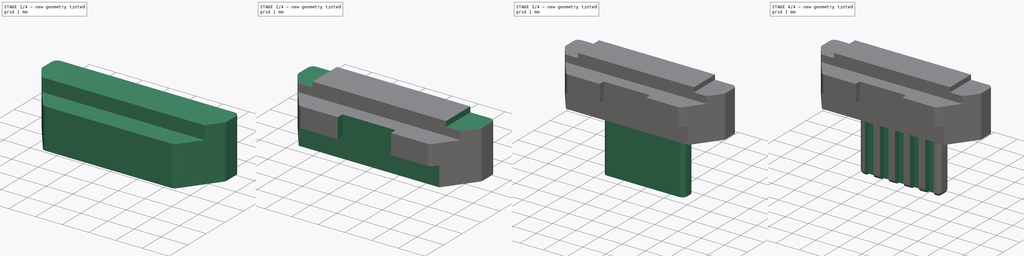
[diagram: build sequence overview — one tinted view per stage of 4, left to right]
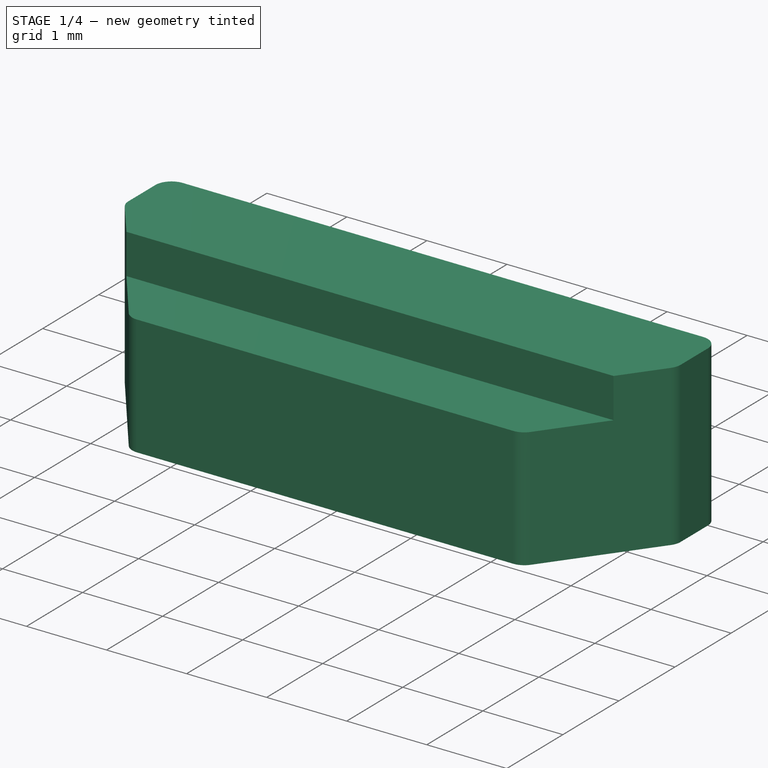
[diagram: stage 1 of 4 — iso view after this stage's code; geometry added in this stage tinted green]
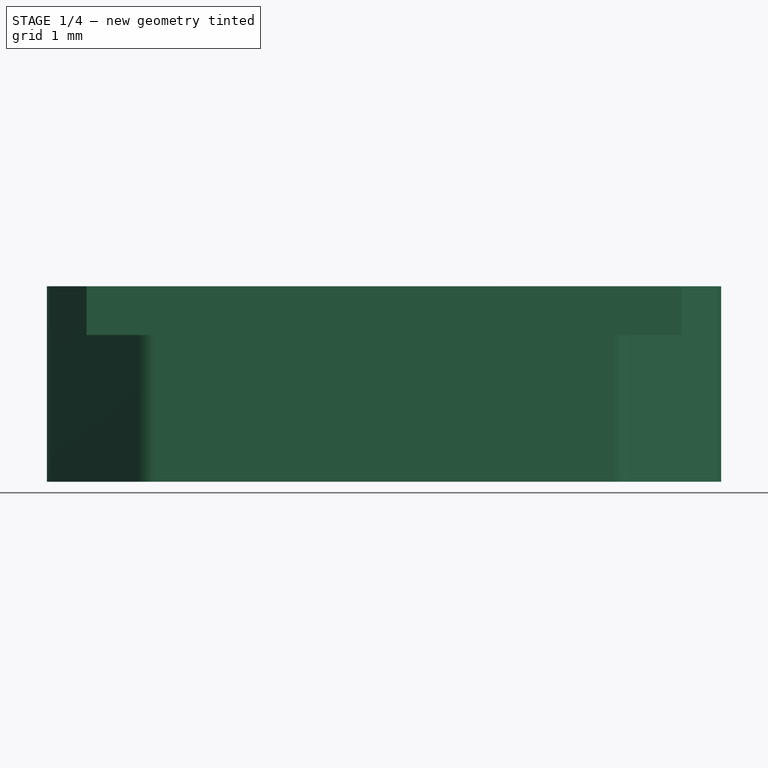
[diagram: stage 1 of 4 — front view after this stage's code; geometry added in this stage tinted green]
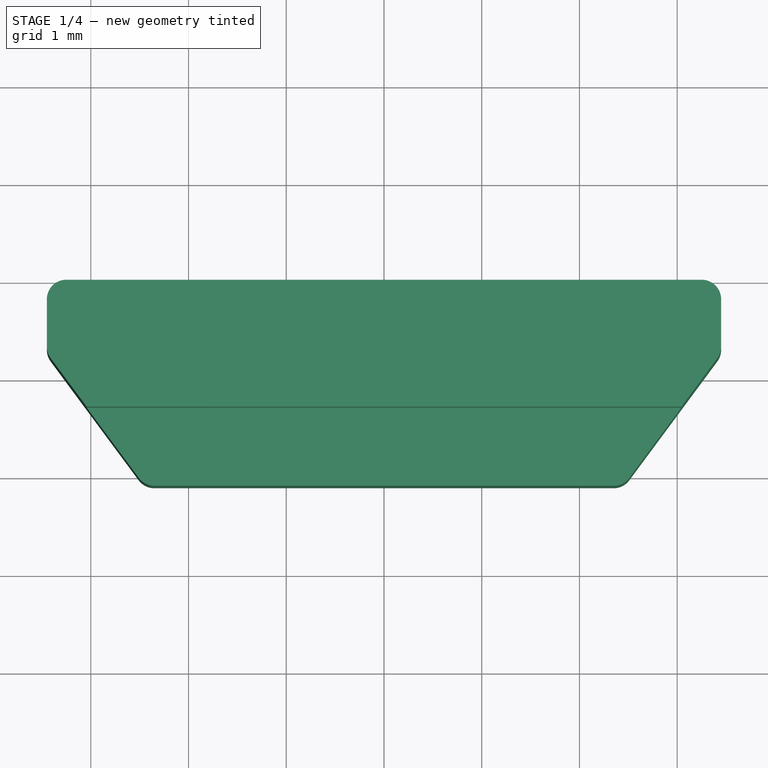
[diagram: stage 1 of 4 — top view after this stage's code; geometry added in this stage tinted green]
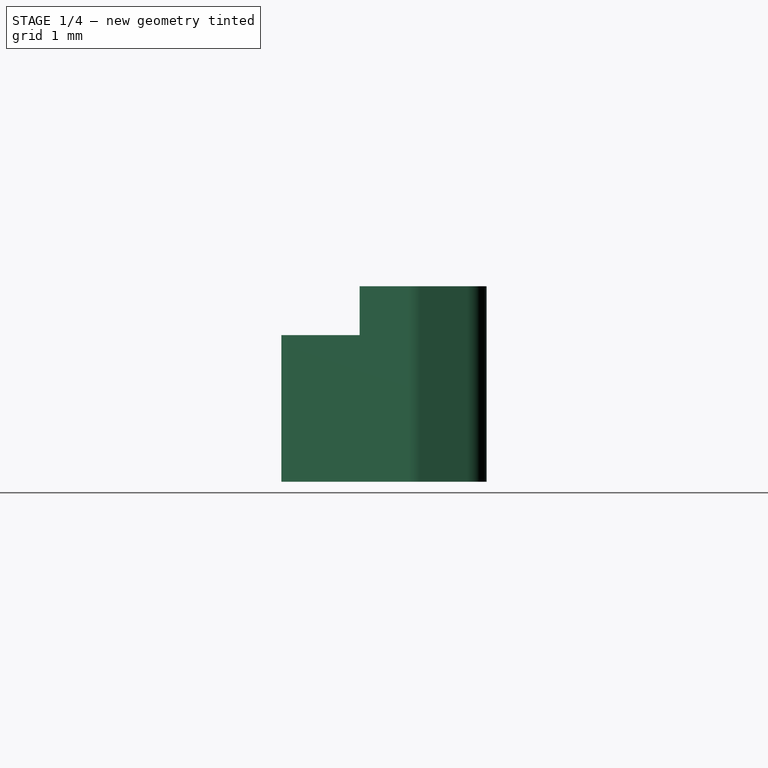
[diagram: stage 1 of 4 — right view after this stage's code; geometry added in this stage tinted green]
FCSTD DOCUMENT  (FreeCAD 0.17R12607 (Git))
Label: U02-BFD3111B0-009 Body1
License: CreativeCommons Attribution-ShareAlike
LicenseURL: http://creativecommons.org/licenses/by-sa/4.0/
objects: Sketcher::SketchObject×8, PartDesign::Pocket×6, PartDesign::Pad×2, PartDesign::Fillet×2, PartDesign::LinearPattern×1, PartDesign::Body×1
note: 28 computed .brp shape members not serialized (recipe doc carries the construction recipe); baked Part::Feature solids carry a one-line shape summary decoded from their .brp

FEATURE [Sketcher::SketchObject] Sketch
  MapMode = 5
  Support = -> [XY_Plane]
  sketch-geometry (9):
    g0: LineSegment StartX=-3.45 StartY=1 StartZ=0 EndX=3.45 EndY=1 EndZ=0
    g1: LineSegment [constr] StartX=3.45 StartY=1 StartZ=0 EndX=3.45 EndY=-1.1 EndZ=0
    g2: LineSegment [constr] StartX=3.45 StartY=-1.1 StartZ=0 EndX=-3.45 EndY=-1.1 EndZ=0
    g3: LineSegment [constr] StartX=-3.45 StartY=-1.1 StartZ=0 EndX=-3.45 EndY=1 EndZ=0
    g4: LineSegment StartX=3.45 StartY=1 StartZ=0 EndX=3.45 EndY=0.25 EndZ=0
    g5: LineSegment StartX=3.45 StartY=0.25 StartZ=0 EndX=2.45 EndY=-1.1 EndZ=0
    g6: LineSegment StartX=-2.45 StartY=-1.1 StartZ=0 EndX=-3.45 EndY=0.25 EndZ=0
    g7: LineSegment StartX=-3.45 StartY=0.25 StartZ=0 EndX=-3.45 EndY=1 EndZ=0
    g8: LineSegment StartX=-2.45 StartY=-1.1 StartZ=0 EndX=2.45 EndY=-1.1 EndZ=0
  constraints (27):
    c: Coincident(g0,g1)
    c: Coincident(g1,g2)
    c: Coincident(g2,g3)
    c: Coincident(g3,g0)
    c: Horizontal(g0)
    c: Horizontal(g2)
    c: Vertical(g1)
    c: Vertical(g3)
    c: Symmetric(g0,g0,g-2)
    c: DistanceX(g0,g0) = 6.9
    c: DistanceY(g1,g1) = 2.1
    c: DistanceY(g-1,g0) = 1
    c: PointOnObject(g4,g1)
    c: Vertical(g4)
    c: Coincident(g4,g5)
    c: PointOnObject(g5,g2)
    c: PointOnObject(g6,g2)
    c: PointOnObject(g6,g3)
    c: Coincident(g6,g7)
    c: Coincident(g7,g0)
    c: Equal(g6,g5)
    c: Equal(g4,g7)
    c: DistanceX(g6,g5) = 4.9
    c: DistanceY(g4,g4) = 0.75
    c: Coincident(g4,g0)
    c: Coincident(g8,g6)
    c: Coincident(g8,g5)
FEATURE [PartDesign::Pad] Pad
  Length = 2
  Length2 = 100
  Profile = -> Sketch
  Type = 0
FEATURE [PartDesign::Fillet] Fillet
  Base = -> Pad [Edge8,Edge11,Edge14,Edge1,Edge2,Edge5]
  BaseFeature = -> Pad
  Radius = 0.2
FEATURE [Sketcher::SketchObject] Sketch001
  ExternalGeometry = -> [Fillet]
  MapMode = 5
  Placement = pos=(0,0,2) rot=(0,0,1;0rad)
  Support = -> [Fillet]
  sketch-geometry (4):
    g0: LineSegment StartX=3.45 StartY=-1.1 StartZ=0 EndX=-3.45 EndY=-1.1 EndZ=0
    g1: LineSegment StartX=-3.45 StartY=-1.1 StartZ=0 EndX=-3.45 EndY=-0.3 EndZ=0
    g2: LineSegment StartX=-3.45 StartY=-0.3 StartZ=0 EndX=3.45 EndY=-0.3 EndZ=0
    g3: LineSegment StartX=3.45 StartY=-0.3 StartZ=0 EndX=3.45 EndY=-1.1 EndZ=0
  constraints (12):
    c: Coincident(g0,g1)
    c: Coincident(g1,g2)
    c: Coincident(g2,g3)
    c: Coincident(g3,g0)
    c: Horizontal(g0)
    c: Horizontal(g2)
    c: Vertical(g1)
    c: Vertical(g3)
    c: PointOnObject(g0,g-3)
    c: PointOnObject(g1,g-4)
    c: Symmetric(g0,g0,g-2)
    c: DistanceY(g3,g3) = 0.8
FEATURE [PartDesign::Pocket] Pocket
  BaseFeature = -> Fillet
  Length = 0.5
  Profile = -> Sketch001
  Type = 0
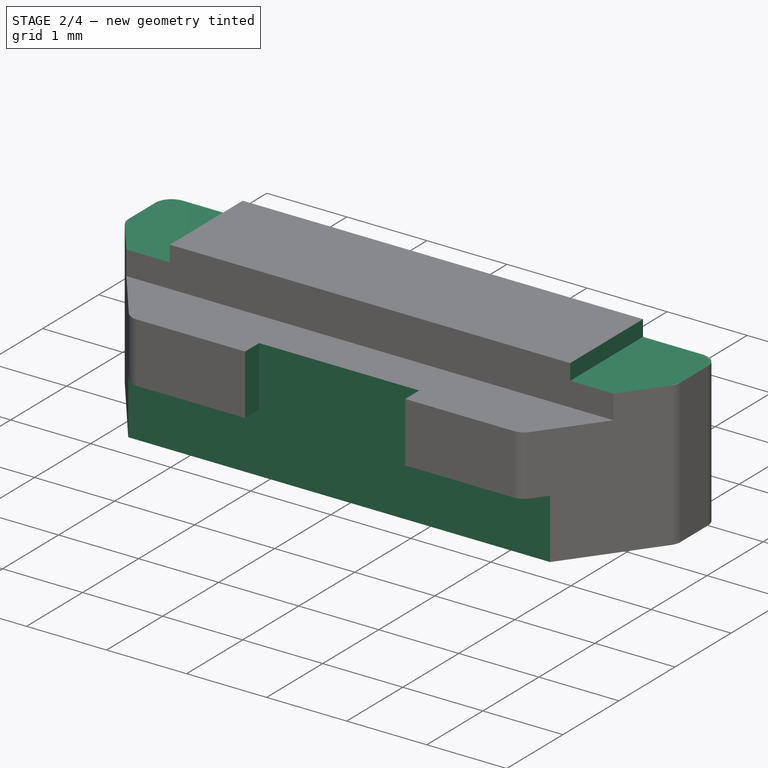
[diagram: stage 2 of 4 — iso view after this stage's code; geometry added in this stage tinted green]
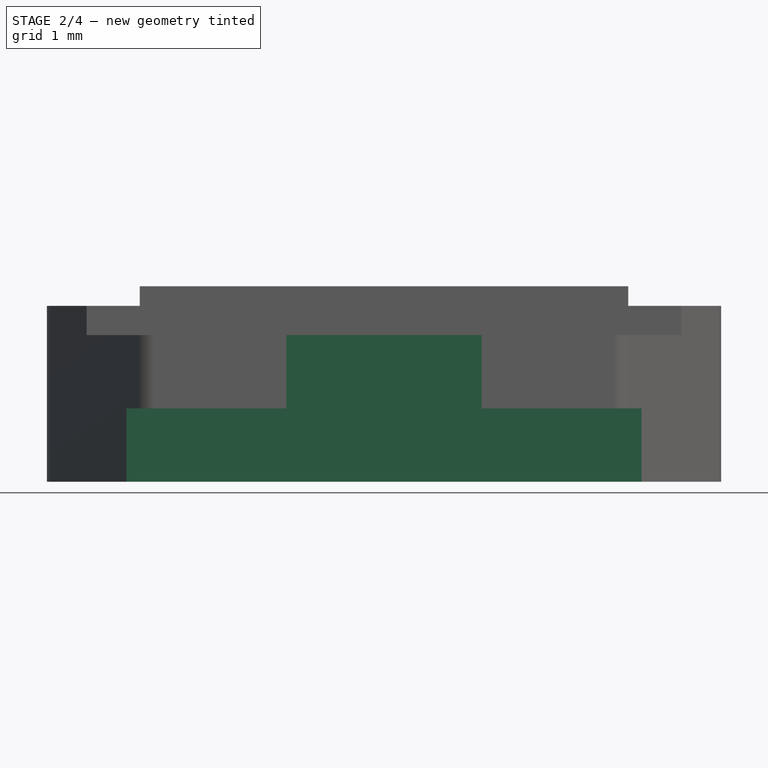
[diagram: stage 2 of 4 — front view after this stage's code; geometry added in this stage tinted green]
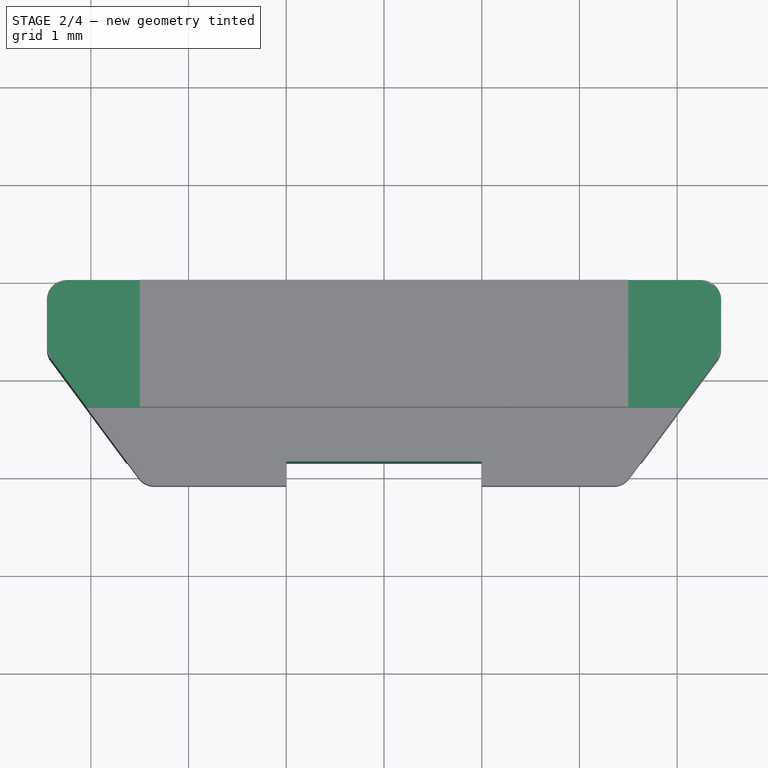
[diagram: stage 2 of 4 — top view after this stage's code; geometry added in this stage tinted green]
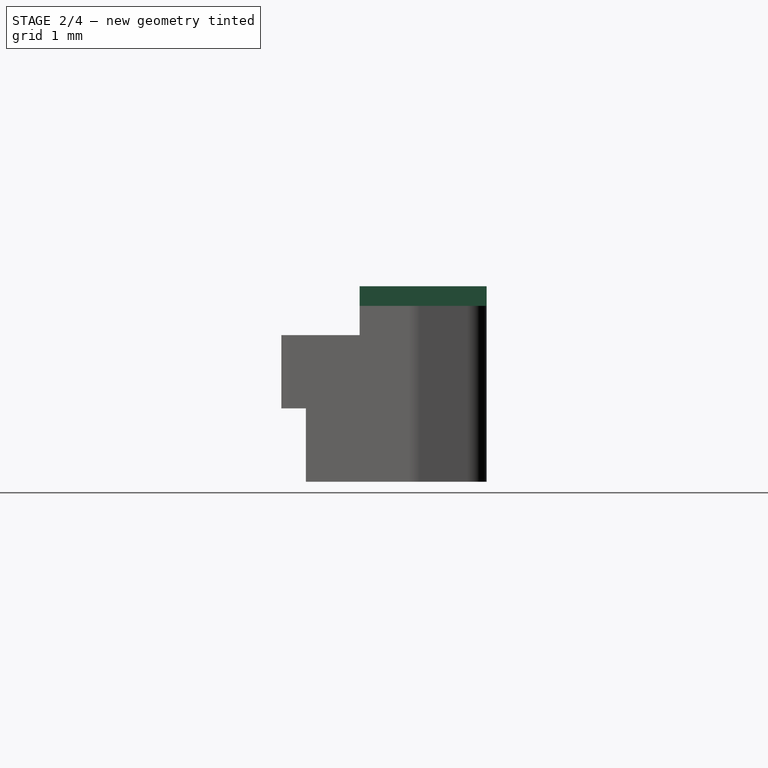
[diagram: stage 2 of 4 — right view after this stage's code; geometry added in this stage tinted green]
FEATURE [Sketcher::SketchObject] Sketch002
  ExternalGeometry = -> [Pocket]
  MapMode = 5
  Placement = pos=(0,0,2) rot=(0,0,1;0rad)
  Support = -> [Pocket]
  sketch-geometry (8):
    g0: LineSegment StartX=-3.45 StartY=1 StartZ=0 EndX=-2.5 EndY=1 EndZ=0
    g1: LineSegment StartX=-2.5 StartY=1 StartZ=0 EndX=-2.5 EndY=-0.3 EndZ=0
    g2: LineSegment StartX=-2.5 StartY=-0.3 StartZ=0 EndX=-3.45 EndY=-0.3 EndZ=0
    g3: LineSegment StartX=-3.45 StartY=-0.3 StartZ=0 EndX=-3.45 EndY=1 EndZ=0
    g4: LineSegment StartX=3.45 StartY=1 StartZ=0 EndX=2.5 EndY=1 EndZ=0
    g5: LineSegment StartX=2.5 StartY=1 StartZ=0 EndX=2.5 EndY=-0.3 EndZ=0
    g6: LineSegment StartX=2.5 StartY=-0.3 StartZ=0 EndX=3.45 EndY=-0.3 EndZ=0
    g7: LineSegment StartX=3.45 StartY=-0.3 StartZ=0 EndX=3.45 EndY=1 EndZ=0
  constraints (22):
    c: Coincident(g0,g1)
    c: Coincident(g1,g2)
    c: Coincident(g2,g3)
    c: Coincident(g3,g0)
    c: Horizontal(g0)
    c: Horizontal(g2)
    c: Vertical(g1)
    c: Vertical(g3)
    c: PointOnObject(g0,g-4)
    c: PointOnObject(g1,g-3)
    c: Coincident(g4,g5)
    c: Coincident(g5,g6)
    c: Coincident(g6,g7)
    c: Coincident(g7,g4)
    c: Horizontal(g4)
    c: Horizontal(g6)
    c: Vertical(g5)
    c: Vertical(g7)
    c: PointOnObject(g0,g-5)
    c: Symmetric(g0,g4,g-2)
    c: Symmetric(g5,g1,g-2)
    c: Distance(g0,g4) = 5
FEATURE [PartDesign::Pocket] Pocket001
  BaseFeature = -> Pocket
  Length = 0.2
  Profile = -> Sketch002
  Type = 0
FEATURE [Sketcher::SketchObject] Sketch003
  ExternalGeometry = -> [Pocket001]
  MapMode = 5
  Placement = pos=(0,-1.1,0) rot=(1,0,0;1.5708rad)
  Support = -> [Pocket001]
  sketch-geometry (4):
    g0: LineSegment StartX=-1 StartY=1.5 StartZ=0 EndX=1 EndY=1.5 EndZ=0
    g1: LineSegment StartX=1 StartY=1.5 StartZ=0 EndX=1 EndY=0 EndZ=0
    g2: LineSegment StartX=1 StartY=0 StartZ=0 EndX=-1 EndY=0 EndZ=0
    g3: LineSegment StartX=-1 StartY=0 StartZ=0 EndX=-1 EndY=1.5 EndZ=0
  constraints (12):
    c: Coincident(g0,g1)
    c: Coincident(g1,g2)
    c: Coincident(g2,g3)
    c: Coincident(g3,g0)
    c: Horizontal(g0)
    c: Horizontal(g2)
    c: Vertical(g1)
    c: Vertical(g3)
    c: PointOnObject(g0,g-3)
    c: PointOnObject(g1,g-1)
    c: DistanceX(g0,g0) = 2
    c: Symmetric(g0,g0,g-2)
FEATURE [PartDesign::Pocket] Pocket002
  BaseFeature = -> Pocket001
  Length = 0.25
  Profile = -> Sketch003
  Type = 0
FEATURE [Sketcher::SketchObject] Sketch004
  ExternalGeometry = -> [Pocket002]
  MapMode = 5
  Placement = pos=(0,0,0) rot=(1,0,0;3.14159rad)
  Support = -> [Pocket002]
  sketch-geometry (4):
    g0: LineSegment StartX=-3.45 StartY=1.1 StartZ=0 EndX=3.45 EndY=1.1 EndZ=0
    g1: LineSegment StartX=3.45 StartY=1.1 StartZ=0 EndX=3.45 EndY=0.85 EndZ=0
    g2: LineSegment StartX=3.45 StartY=0.85 StartZ=0 EndX=-3.45 EndY=0.85 EndZ=0
    g3: LineSegment StartX=-3.45 StartY=0.85 StartZ=0 EndX=-3.45 EndY=1.1 EndZ=0
  constraints (12):
    c: Coincident(g0,g1)
    c: Coincident(g1,g2)
    c: Coincident(g2,g3)
    c: Coincident(g3,g0)
    c: Horizontal(g0)
    c: Horizontal(g2)
    c: Vertical(g1)
    c: Vertical(g3)
    c: PointOnObject(g0,g-3)
    c: PointOnObject(g2,g-4)
    c: PointOnObject(g1,g-5)
    c: Symmetric(g0,g0,g-2)
FEATURE [PartDesign::Pocket] Pocket003
  BaseFeature = -> Pocket002
  Length = 0.75
  Profile = -> Sketch004
  Type = 0
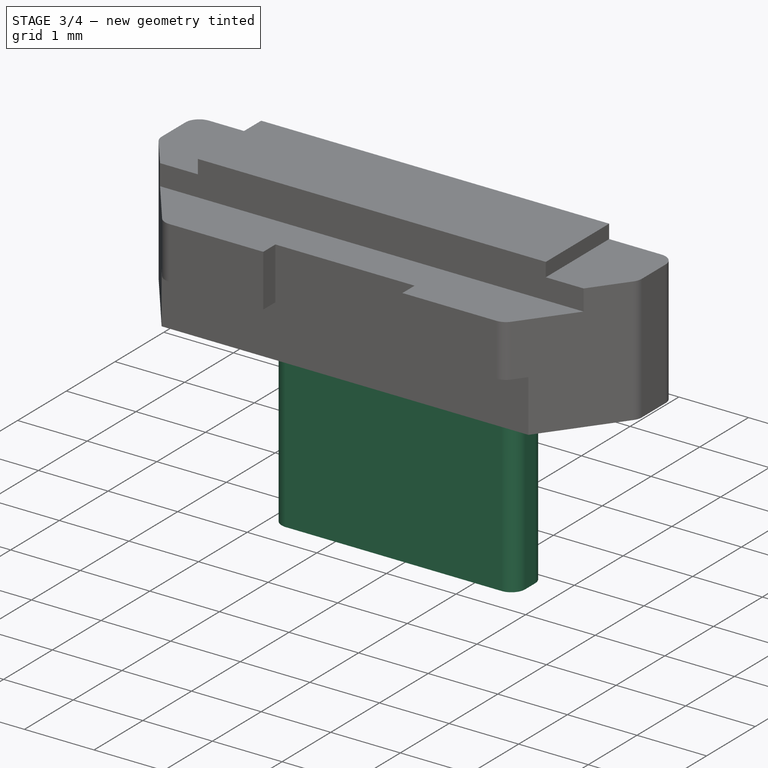
[diagram: stage 3 of 4 — iso view after this stage's code; geometry added in this stage tinted green]
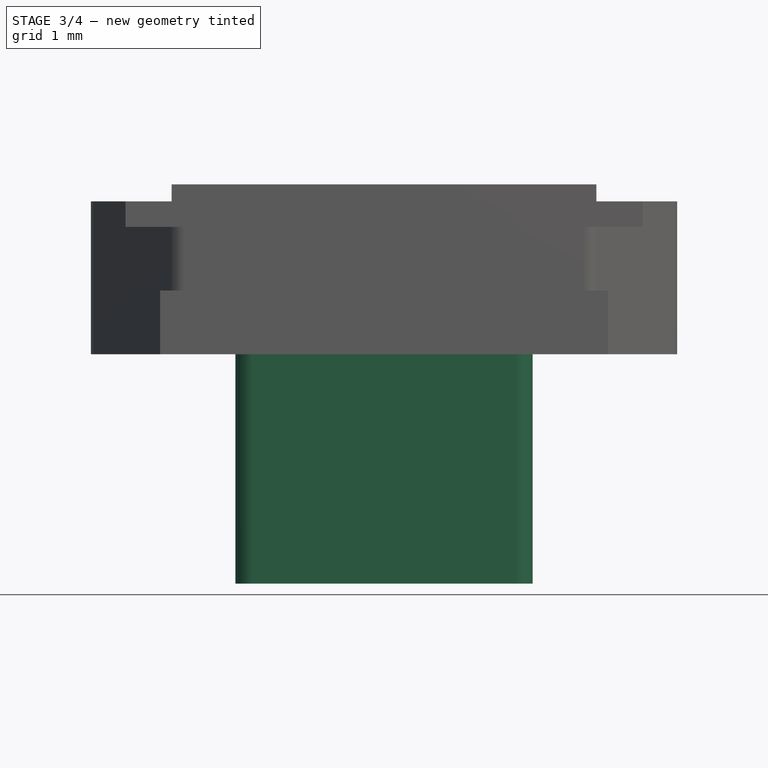
[diagram: stage 3 of 4 — front view after this stage's code; geometry added in this stage tinted green]
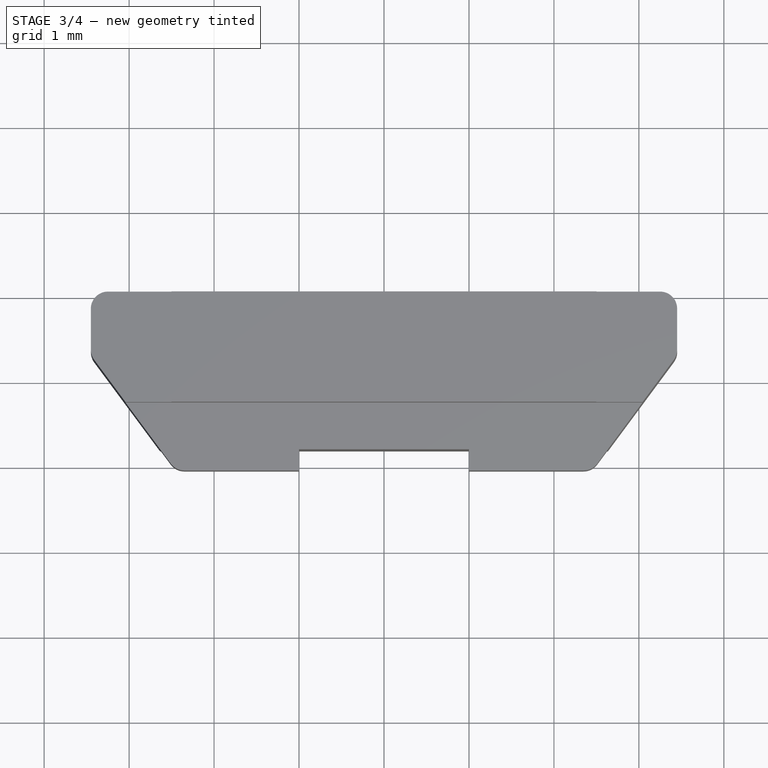
[diagram: stage 3 of 4 — top view after this stage's code; geometry added in this stage tinted green]
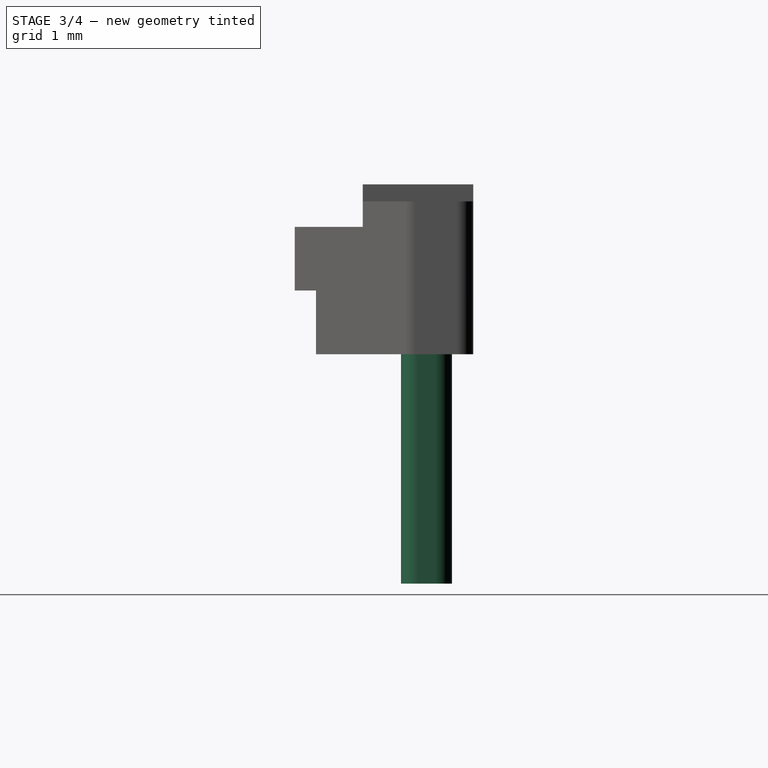
[diagram: stage 3 of 4 — right view after this stage's code; geometry added in this stage tinted green]
FEATURE [Sketcher::SketchObject] Sketch005
  ExternalGeometry = -> [Pocket003]
  MapMode = 5
  Placement = pos=(0,1,0) rot=(0,0.707107,0.707107;3.14159rad)
  Support = -> [Pocket003]
  sketch-geometry (4):
    g0: LineSegment StartX=-2.2 StartY=1.05 StartZ=0 EndX=2.2 EndY=1.05 EndZ=0
    g1: LineSegment StartX=2.2 StartY=1.05 StartZ=0 EndX=2.2 EndY=1.75 EndZ=0
    g2: LineSegment StartX=2.2 StartY=1.75 StartZ=0 EndX=-2.2 EndY=1.75 EndZ=0
    g3: LineSegment StartX=-2.2 StartY=1.75 StartZ=0 EndX=-2.2 EndY=1.05 EndZ=0
  constraints (12):
    c: Coincident(g0,g1)
    c: Coincident(g1,g2)
    c: Coincident(g2,g3)
    c: Coincident(g3,g0)
    c: Horizontal(g0)
    c: Horizontal(g2)
    c: Vertical(g1)
    c: Vertical(g3)
    c: DistanceX(g2,g2) = 4.4
    c: DistanceY(g3,g3) = 0.7
    c: Distance(g2,g-3) = 0.25
    c: Symmetric(g2,g1,g-2)
FEATURE [PartDesign::Pocket] Pocket004
  BaseFeature = -> Pocket003
  Length = 0.25
  Profile = -> Sketch005
  Type = 0
FEATURE [Sketcher::SketchObject] Sketch006
  ExternalGeometry = -> [Pocket004]
  MapMode = 5
  Placement = pos=(0,0,0) rot=(1,0,0;3.14159rad)
  Support = -> [Pocket004]
  sketch-geometry (8):
    g0: LineSegment StartX=-1.55 StartY=-0.15 StartZ=0 EndX=1.55 EndY=-0.15 EndZ=0
    g1: LineSegment StartX=1.75001 StartY=-0.35 StartZ=0 EndX=1.75001 EndY=-0.55 EndZ=0
    g2: LineSegment StartX=1.55001 StartY=-0.75 StartZ=0 EndX=-1.54999 EndY=-0.75 EndZ=0
    g3: LineSegment StartX=-1.74999 StartY=-0.35 StartZ=0 EndX=-1.74999 EndY=-0.55 EndZ=0
    g4: ArcOfCircle CenterX=-1.54999 CenterY=-0.35 CenterZ=0 NormalX=0 NormalY=0 NormalZ=1 AngleXU=0 Radius=0.2 StartAngle=1.57083 EndAngle=3.14159
    g5: ArcOfCircle CenterX=-1.54999 CenterY=-0.55 CenterZ=0 NormalX=0 NormalY=0 NormalZ=1 AngleXU=0 Radius=0.2 StartAngle=3.14159 EndAngle=4.71239
    g6: ArcOfCircle CenterX=1.55001 CenterY=-0.55 CenterZ=0 NormalX=0 NormalY=0 NormalZ=1 AngleXU=0 Radius=0.2 StartAngle=4.71239 EndAngle=6.28319
    g7: ArcOfCircle CenterX=1.55001 CenterY=-0.35 CenterZ=0 NormalX=0 NormalY=0 NormalZ=1 AngleXU=0 Radius=0.2 StartAngle=6.604e-09 EndAngle=1.57083
  constraints (27):
    c: Vertical(g1)
    c: Horizontal(g2)
    c: Vertical(g3)
    c: Equal(g0,g2)
    c: Equal(g1,g3)
    c: Coincident(g4,g0)
    c: Coincident(g4,g3)
    c: Coincident(g5,g3)
    c: Coincident(g5,g2)
    c: Coincident(g6,g2)
    c: Coincident(g6,g1)
    c: Coincident(g7,g0)
    c: Coincident(g7,g1)
    c: Equal(g7,g6)
    c: Radius(g7) = 0.2
    c: Equal(g7,g4)
    c: Tangent(g0,g4)
    c: Tangent(g4,g3)
    c: Tangent(g3,g5)
    c: Tangent(g2,g5)
    c: Tangent(g6,g2)
    c: Tangent(g1,g6)
    c: Tangent(g7,g1)
    c: Symmetric(g0,g0,g-2)
    c: Distance(g3,g1) = 3.5
    c: Distance(g0,g2) = 0.6
    c: Distance(g2,g-3) = 0.25
FEATURE [PartDesign::Pad] Pad001
  BaseFeature = -> Pocket004
  Length = 2.7
  Length2 = 100
  Profile = -> Sketch006
  Type = 0
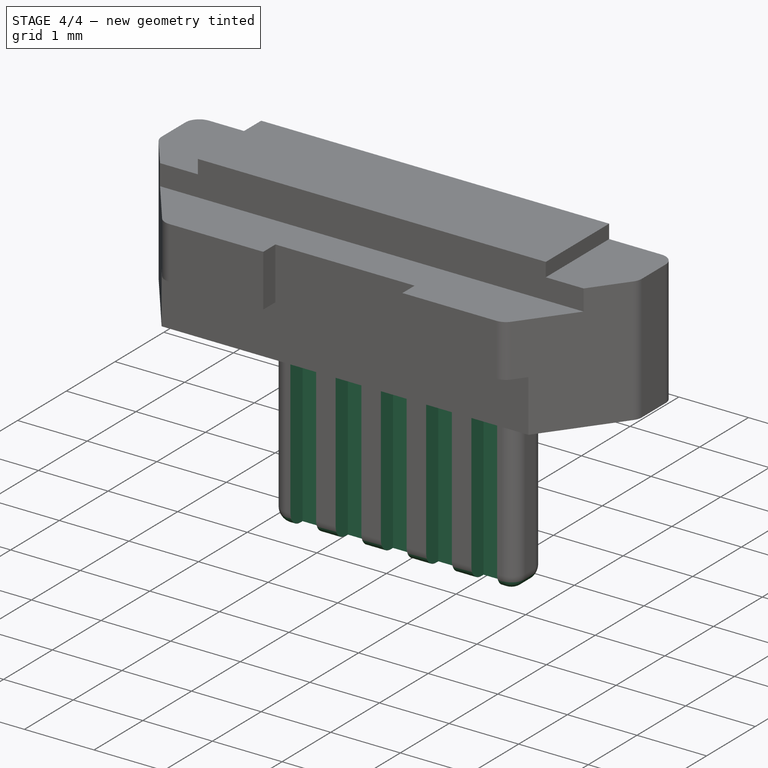
[diagram: stage 4 of 4 — iso view after this stage's code; geometry added in this stage tinted green]
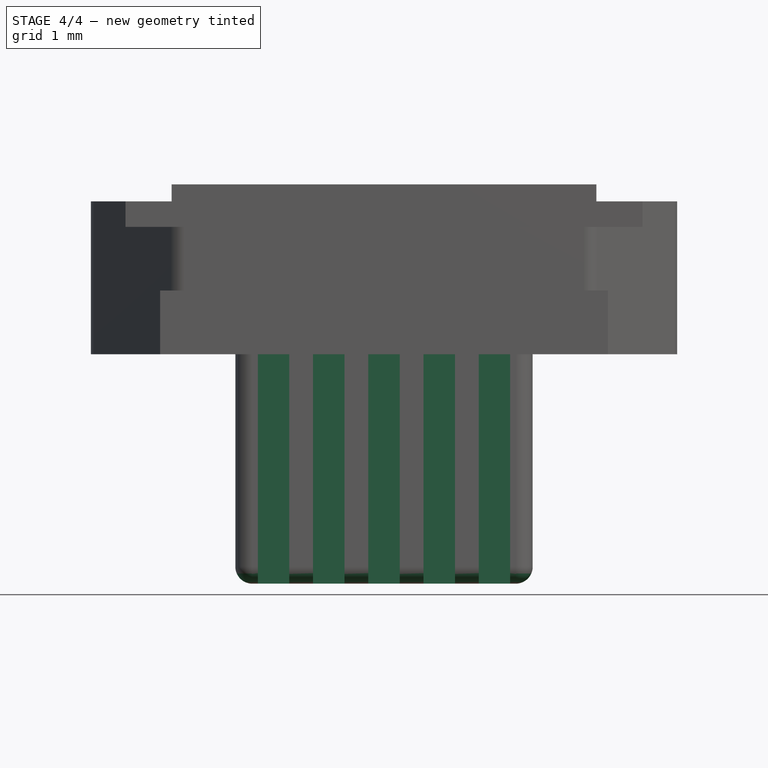
[diagram: stage 4 of 4 — front view after this stage's code; geometry added in this stage tinted green]
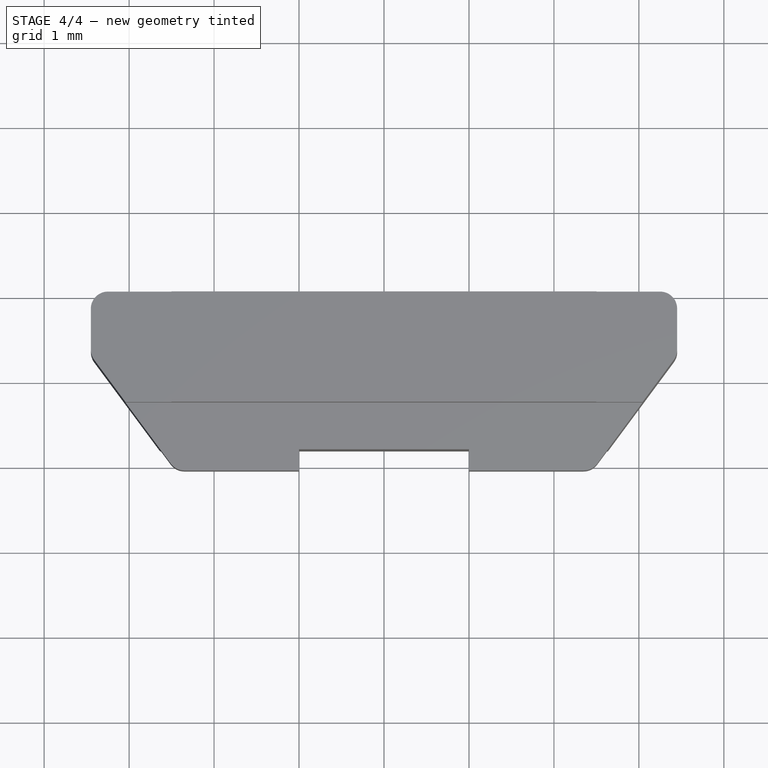
[diagram: stage 4 of 4 — top view after this stage's code; geometry added in this stage tinted green]
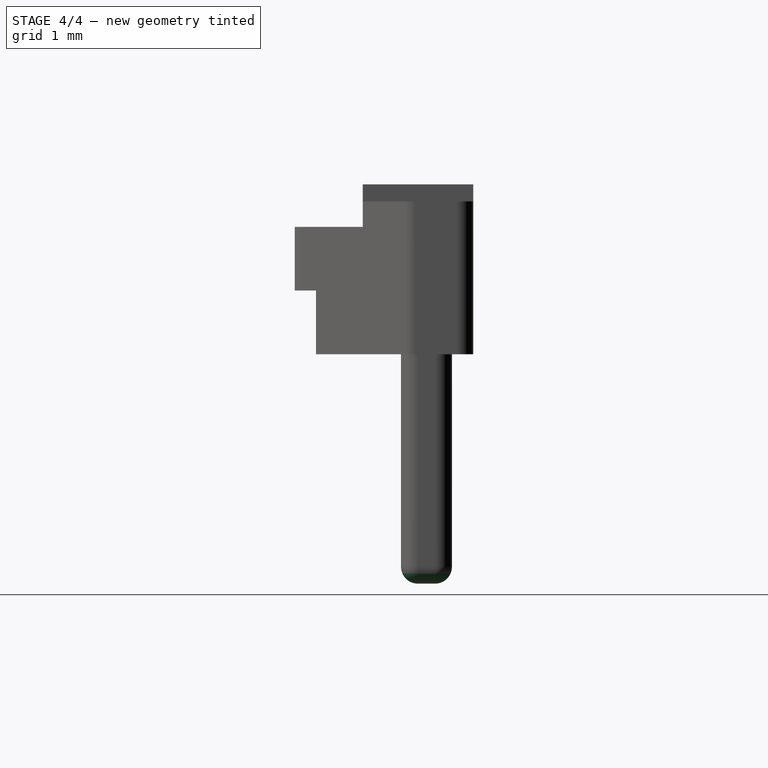
[diagram: stage 4 of 4 — right view after this stage's code; geometry added in this stage tinted green]
FEATURE [PartDesign::Fillet] Fillet001
  Base = -> Pad001 [Face42]
  BaseFeature = -> Pad001
  Radius = 0.2
FEATURE [Sketcher::SketchObject] Sketch007
  ExternalGeometry = -> [Fillet001]
  MapMode = 5
  Placement = pos=(0,0,-2.7) rot=(1,0,0;3.14159rad)
  Support = -> [Fillet001]
  sketch-geometry (4):
    g0: LineSegment StartX=-1.485 StartY=-0.15 StartZ=0 EndX=-1.115 EndY=-0.15 EndZ=0
    g1: LineSegment StartX=-1.115 StartY=-0.15 StartZ=0 EndX=-1.115 EndY=-0.4 EndZ=0
    g2: LineSegment StartX=-1.115 StartY=-0.4 StartZ=0 EndX=-1.485 EndY=-0.4 EndZ=0
    g3: LineSegment StartX=-1.485 StartY=-0.4 StartZ=0 EndX=-1.485 EndY=-0.15 EndZ=0
  constraints (12):
    c: Coincident(g0,g1)
    c: Coincident(g1,g2)
    c: Coincident(g2,g3)
    c: Coincident(g3,g0)
    c: Horizontal(g0)
    c: Horizontal(g2)
    c: Vertical(g1)
    c: Vertical(g3)
    c: PointOnObject(g0,g-3)
    c: DistanceY(g1,g1) = 0.25
    c: DistanceX(g0,g0) = 0.37
    c: DistanceX(g-2,g0) = -1.115
FEATURE [PartDesign::Pocket] Pocket005
  BaseFeature = -> Fillet001
  Length = 0
  Profile = -> Sketch007
  Type = 3
  UpToFace = -> Fillet001 [Face4]
FEATURE [PartDesign::LinearPattern] LinearPattern
  Direction = -> X_Axis
  Length = 2.6
  Occurrences = 5
  Originals = -> [Pocket005]
FEATURE [PartDesign::Body] Body
  Group = -> [Sketch,Pad,Fillet,Sketch001,Pocket,Sketch002,Pocket001,Sketch003,Pocket002,Sketch004,Pocket003,Sketch005,Pocket004,Sketch006,Pad001,Fillet001,Sketch007,Pocket005,LinearPattern]
  Origin = -> Origin
  Tip = -> LinearPattern
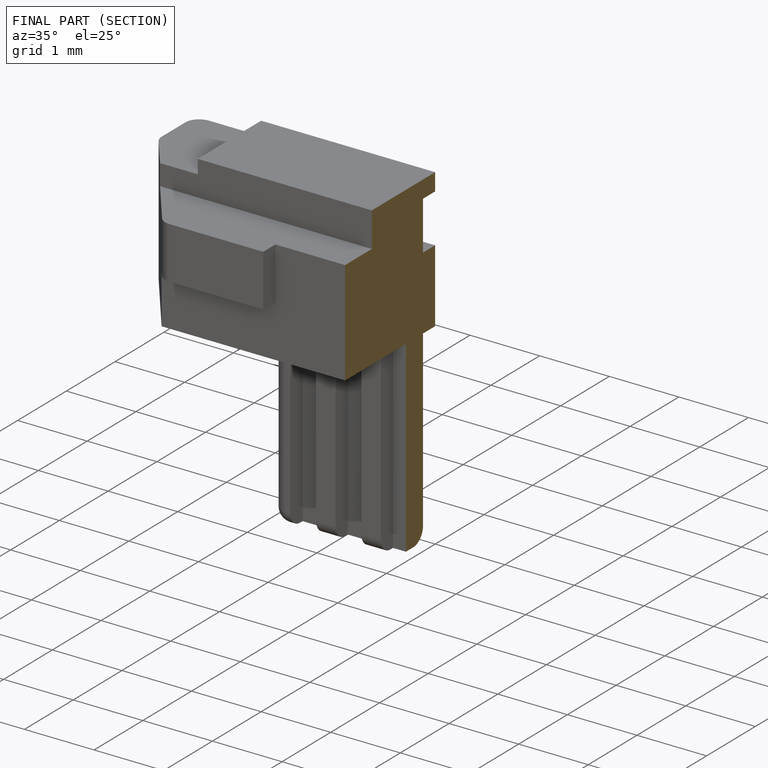
[diagram: finished part — half-section view (interior)]
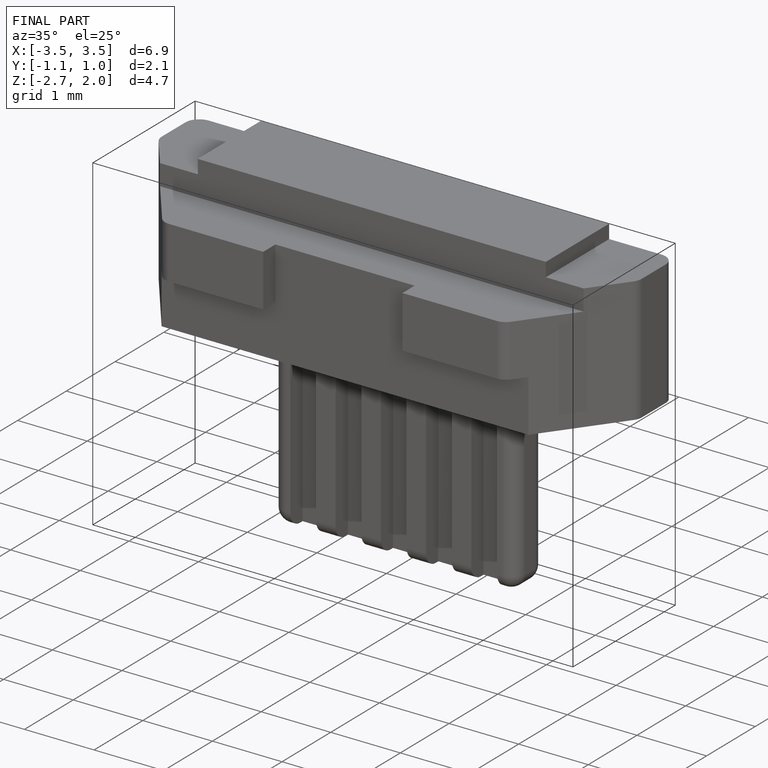
[diagram: finished part — iso view with bounding-box wireframe]
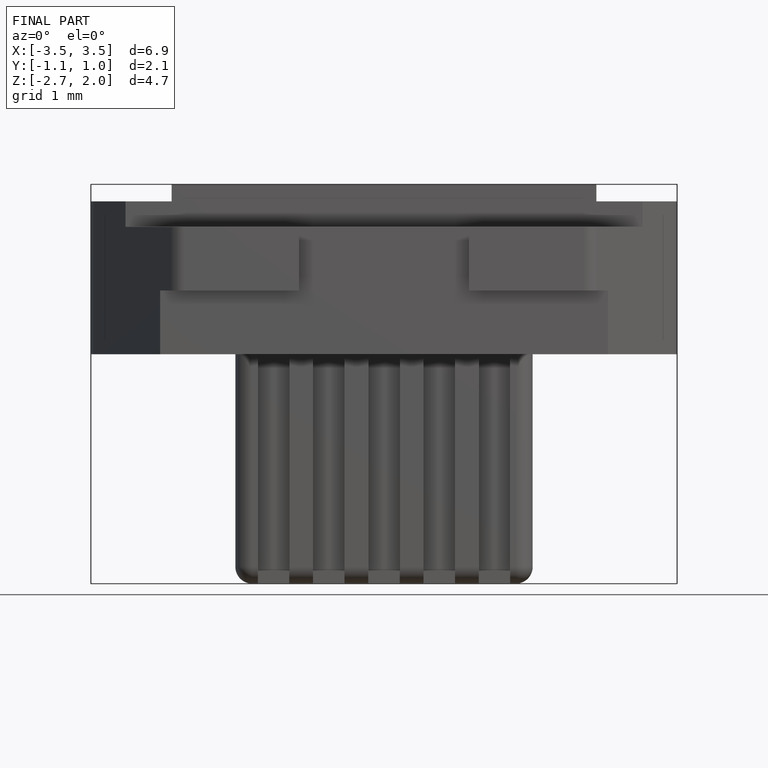
[diagram: finished part — front view with bounding-box wireframe]
